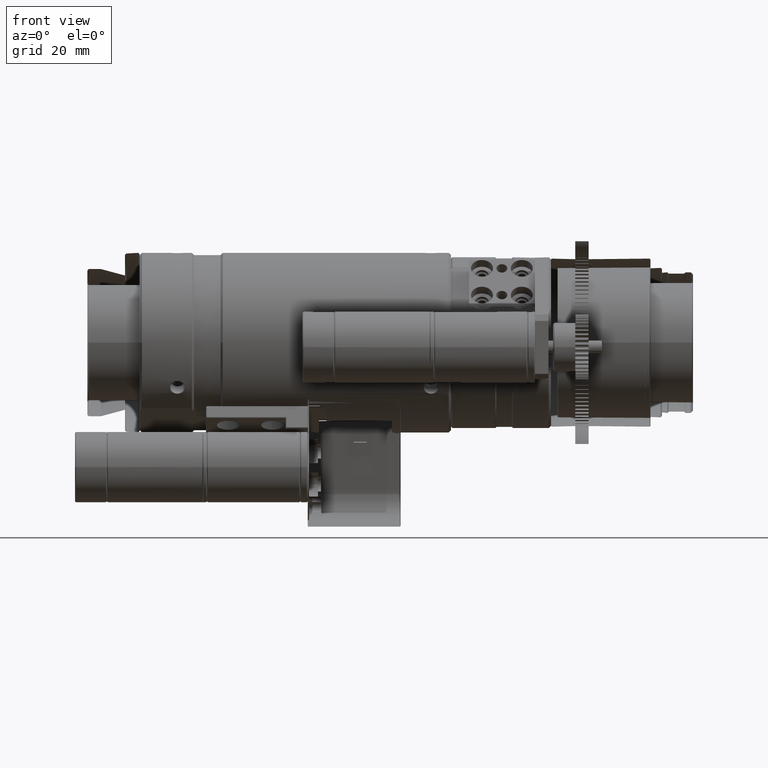
[diagram: clean part render]
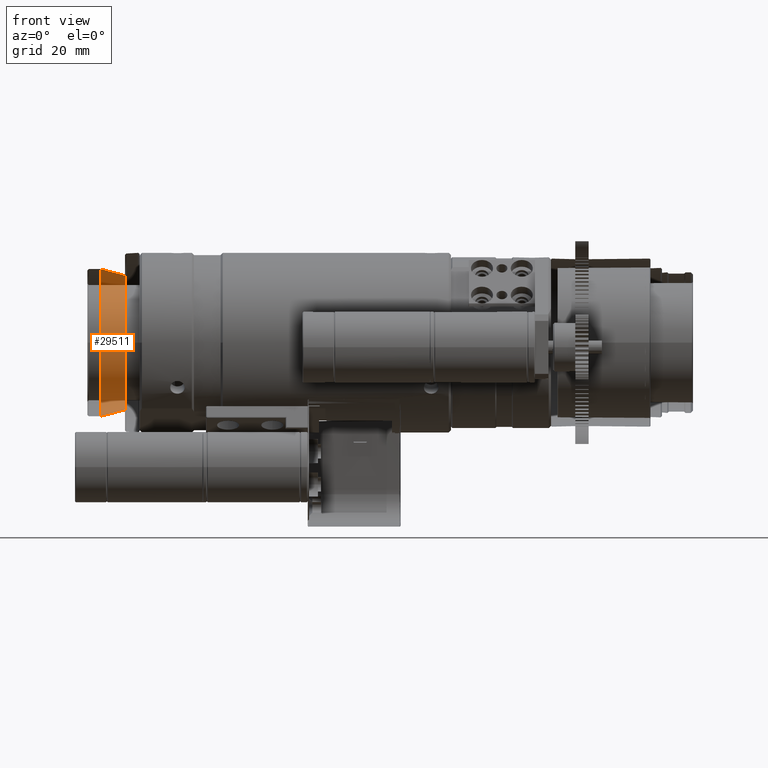
[diagram: same view with one face highlighted and labeled with its STEP entity id]
A machine part, front view. The second image highlights one B-rep face of the part: STEP entity #29511.
In plain terms, the highlighted conical surface has half-angle 15 deg.
Its self-contained STEP definition (entity closure, byte-faithful):
#2310 = DIRECTION ( 'NONE',  ( 0.0000000000000000000, 0.0000000000000000000, 1.000000000000000000 ) ) ;
#4162 = VERTEX_POINT ( 'NONE', #31507 ) ;
#4289 = EDGE_CURVE ( 'NONE', #31809, #43662, #16118, .T. ) ;
#5910 = DIRECTION ( 'NONE',  ( -1.000000000000000000, 0.0000000000000000000, 0.0000000000000000000 ) ) ;
#6593 = EDGE_CURVE ( 'NONE', #4162, #42128, #34145, .T. ) ;
#6698 = ORIENTED_EDGE ( 'NONE', *, *, #22112, .T. ) ;
#11495 = CARTESIAN_POINT ( 'NONE',  ( -2.100000000036402500, 1.846751162690088300E-029, 3.257857590205276400E-031 ) ) ;
#11951 = VERTEX_POINT ( 'NONE', #34115 ) ;
#12218 = AXIS2_PLACEMENT_3D ( 'NONE', #13072, #5910, #2310 ) ;
#13072 = CARTESIAN_POINT ( 'NONE',  ( -2.100000000036410500, 0.0000000000000000000, 0.0000000000000000000 ) ) ;
#15067 = DIRECTION ( 'NONE',  ( 0.0000000000000000000, 1.000000000000000000, 0.0000000000000000000 ) ) ;
#15542 = EDGE_LOOP ( 'NONE', ( #19556, #6698, #26376, #23449, #19659 ) ) ;
#16118 = CIRCLE ( 'NONE', #36973, 16.64999999999999900 ) ;
#16216 = DIRECTION ( 'NONE',  ( 0.0000000000000000000, 0.0000000000000000000, 1.000000000000000000 ) ) ;
#16265 = DIRECTION ( 'NONE',  ( -1.000000000000000000, 0.0000000000000000000, 0.0000000000000000000 ) ) ;
#16335 = CARTESIAN_POINT ( 'NONE',  ( 3.399999999963595300, 0.0000000000000000000, 0.0000000000000000000 ) ) ;
#16777 = CARTESIAN_POINT ( 'NONE',  ( 3.399999999963595300, 0.0000000000000000000, 15.17627944162492200 ) ) ;
#19556 = ORIENTED_EDGE ( 'NONE', *, *, #6593, .F. ) ;
#19659 = ORIENTED_EDGE ( 'NONE', *, *, #20955, .F. ) ;
#20127 = DIRECTION ( 'NONE',  ( -0.9659258262890801900, 3.169619151431219500E-017, -0.2588190451024762200 ) ) ;
#20955 = EDGE_CURVE ( 'NONE', #42128, #43662, #33640, .T. ) ;
#21143 = CIRCLE ( 'NONE', #38424, 16.64999999999999900 ) ;
#22112 = EDGE_CURVE ( 'NONE', #4162, #11951, #27087, .T. ) ;
#22243 = CARTESIAN_POINT ( 'NONE',  ( -2.100000000036402500, -16.64999999999999900, 2.039036920580343500E-015 ) ) ;
#23293 = DIRECTION ( 'NONE',  ( -0.9659258262890801900, 0.0000000000000000000, 0.2588190451024762200 ) ) ;
#23313 = EDGE_CURVE ( 'NONE', #11951, #31809, #21143, .T. ) ;
#23449 = ORIENTED_EDGE ( 'NONE', *, *, #4289, .T. ) ;
#26376 = ORIENTED_EDGE ( 'NONE', *, *, #23313, .T. ) ;
#26835 = VECTOR ( 'NONE', #20127, 1000.000000000000200 ) ;
#27087 = LINE ( 'NONE', #27190, #26835 ) ;
#27190 = CARTESIAN_POINT ( 'NONE',  ( -2.100000000036410500, 2.039036920579832300E-015, -16.64999999999582800 ) ) ;
#27439 = AXIS2_PLACEMENT_3D ( 'NONE', #16335, #16265, #16216 ) ;
#28268 = DIRECTION ( 'NONE',  ( 0.0000000000000000000, 1.000000000000000000, 0.0000000000000000000 ) ) ;
#28300 = DIRECTION ( 'NONE',  ( -1.000000000000000000, 1.635240667832669900E-030, 3.571983385474939900E-032 ) ) ;
#28350 = CARTESIAN_POINT ( 'NONE',  ( -2.100000000036402500, 1.846751162690088300E-029, 3.257857590205276400E-031 ) ) ;
#29511 = ADVANCED_FACE ( 'NONE', ( #34638 ), #34261, .F. ) ;
#31507 = CARTESIAN_POINT ( 'NONE',  ( 3.399999999963595300, 1.948797562347503000E-015, -15.17627944162492200 ) ) ;
#31809 = VERTEX_POINT ( 'NONE', #22243 ) ;
#33181 = VECTOR ( 'NONE', #23293, 1000.000000000000200 ) ;
#33640 = LINE ( 'NONE', #43552, #33181 ) ;
#34115 = CARTESIAN_POINT ( 'NONE',  ( -2.100000000036402500, 2.039036920579832000E-015, -16.64999999999582400 ) ) ;
#34145 = CIRCLE ( 'NONE', #27439, 15.17627944162492200 ) ;
#34261 = CONICAL_SURFACE ( 'NONE', #12218, 16.64999999999582800, 0.2617993877991033300 ) ;
#34638 = FACE_OUTER_BOUND ( 'NONE', #15542, .T. ) ;
#35745 = DIRECTION ( 'NONE',  ( -1.000000000000000000, 1.635240667832669900E-030, 3.571983385474939900E-032 ) ) ;
#36973 = AXIS2_PLACEMENT_3D ( 'NONE', #28350, #28300, #28268 ) ;
#38424 = AXIS2_PLACEMENT_3D ( 'NONE', #11495, #35745, #15067 ) ;
#41048 = CARTESIAN_POINT ( 'NONE',  ( -2.100000000036402500, 0.0000000000000000000, 16.64999999999582400 ) ) ;
#42128 = VERTEX_POINT ( 'NONE', #16777 ) ;
#43552 = CARTESIAN_POINT ( 'NONE',  ( -2.100000000036410500, 0.0000000000000000000, 16.64999999999582800 ) ) ;
#43662 = VERTEX_POINT ( 'NONE', #41048 ) ;